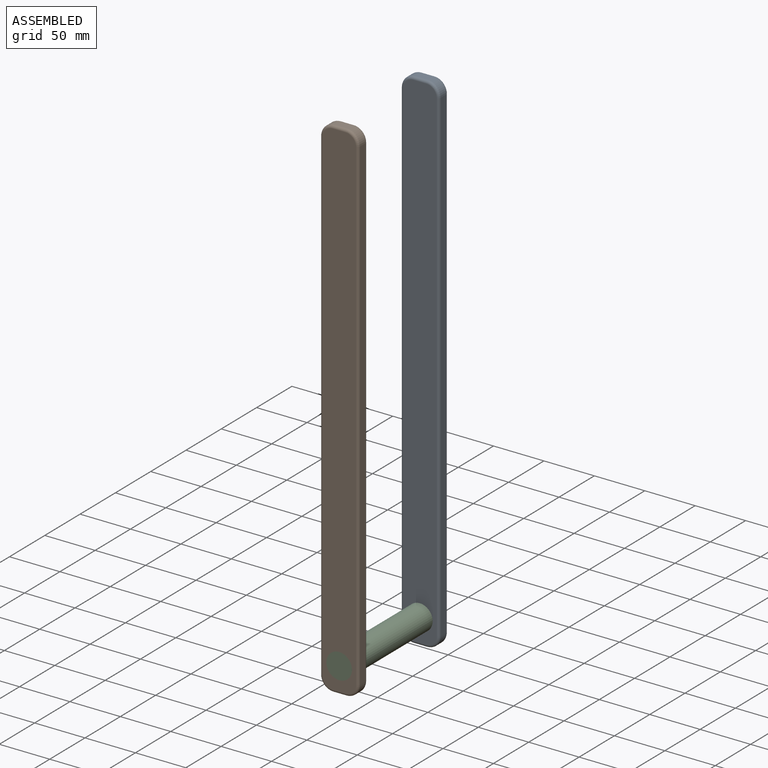
[diagram: assembled view]
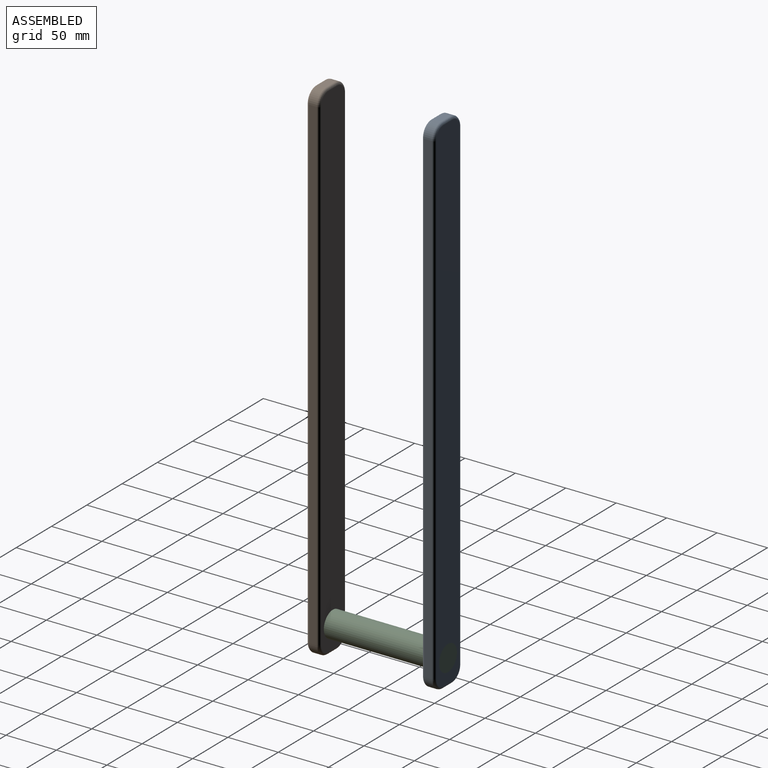
[diagram: assembled view, second angle]
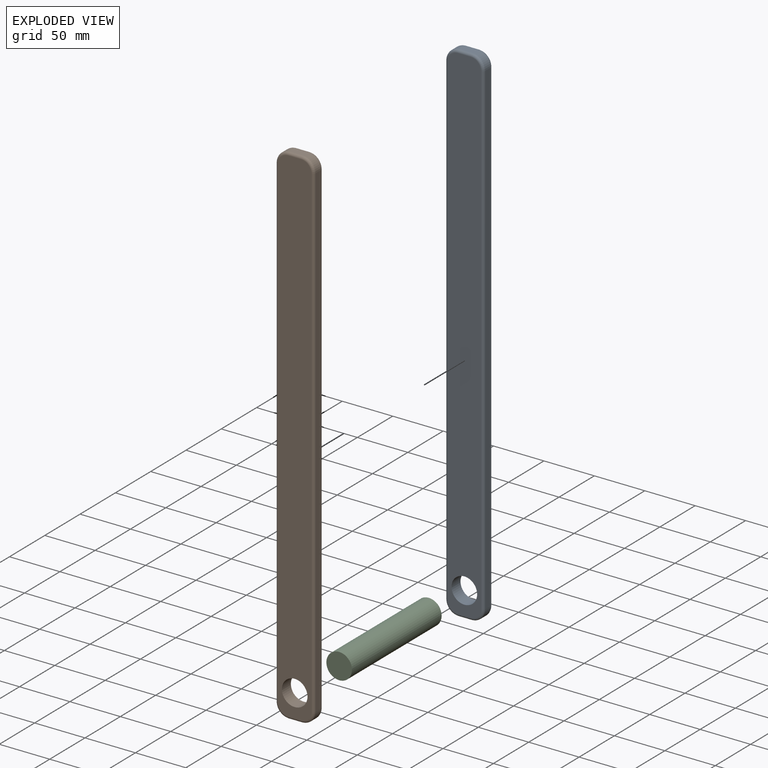
[diagram: exploded view]
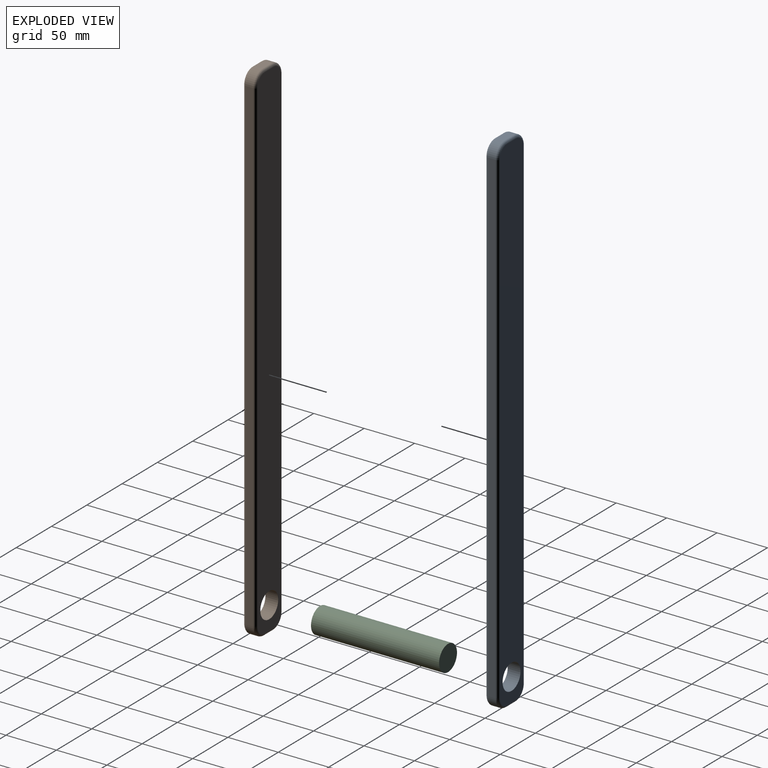
[diagram: exploded view, second angle]
ASSEMBLY  parts=3 mates=2
PART A: 27 faces, bbox 40.2x12.7x510.1 mm
  f0: plane 482.6x7.62mm, normal (-1,0,0), area 3677.4mm2, adj f1,f8,f14,f22
  f1: cylinder r=12.7mm len=12.7mm, axis (0,1,0), area 152mm2, adj f0,f2,f16,f24
  f2: plane 12.7x7.62mm, normal (0,0,-1), area 96.8mm2, adj f1,f3,f18,f26
  f3: cylinder r=12.7mm len=12.7mm, axis (0,1,0), area 152mm2, adj f2,f4,f17,f25
  f4: plane 482.6x7.62mm, normal (1,0,0), area 3677.4mm2, adj f3,f5,f15,f23
  f5: cylinder r=12.7mm len=12.7mm, axis (0,1,0), area 152mm2, adj f4,f6,f13,f21
  f6: plane 12.7x7.62mm, normal (0,0,1), area 96.8mm2, adj f5,f8,f11,f19
  f7: cylinder r=12.7mm len=25.4mm, axis (0,1,0), area 1013.4mm2, adj f9,f10
  f8: cylinder r=12.7mm len=12.7mm, axis (0,1,0), area 152mm2, adj f0,f6,f12,f20
  f9: plane 502.92x33.02mm, normal (0,-1,0), area 16011.1mm2, adj f7,f19,f20,f21,f22,f23,f24,f25
  f10: plane 502.92x33.02mm, normal (0,1,0), area 16011.1mm2, adj f7,f11,f12,f13,f14,f15,f16,f17
  f11: cylinder r=2.54mm len=12.7mm, axis (-1,0,0), area 50.7mm2, adj f6,f10,f12,f13
  f12: torus R=10.16mm, axis (0,-1,0), area 73.8mm2, adj f8,f10,f11,f14
  f13: torus R=10.16mm, axis (0,-1,0), area 73.8mm2, adj f5,f10,f11,f15
  f14: cylinder r=2.54mm len=482.6mm, axis (0,0,-1), area 1925.5mm2, adj f0,f10,f12,f16
  f15: cylinder r=2.54mm len=482.6mm, axis (0,0,1), area 1925.5mm2, adj f4,f10,f13,f17
  f16: torus R=10.16mm, axis (0,-1,0), area 73.8mm2, adj f1,f10,f14,f18
  f17: torus R=10.16mm, axis (0,-1,0), area 73.8mm2, adj f3,f10,f15,f18
  f18: cylinder r=2.54mm len=12.7mm, axis (1,0,0), area 50.7mm2, adj f2,f10,f16,f17
  f19: cylinder r=2.54mm len=12.7mm, axis (1,0,0), area 50.7mm2, adj f6,f9,f20,f21
  f20: torus R=10.16mm, axis (0,-1,0), area 73.8mm2, adj f8,f9,f19,f22
  f21: torus R=10.16mm, axis (0,-1,0), area 73.8mm2, adj f5,f9,f19,f23
  f22: cylinder r=2.54mm len=482.6mm, axis (0,0,1), area 1925.5mm2, adj f0,f9,f20,f24
  f23: cylinder r=2.54mm len=482.6mm, axis (0,0,-1), area 1925.5mm2, adj f4,f9,f21,f25
  f24: torus R=10.16mm, axis (0,-1,0), area 73.8mm2, adj f1,f9,f22,f26
  f25: torus R=10.16mm, axis (0,-1,0), area 73.8mm2, adj f3,f9,f23,f26
  f26: cylinder r=2.54mm len=12.7mm, axis (-1,0,0), area 50.7mm2, adj f2,f9,f24,f25
PART B: same geometry as A
PART C: 3 faces, bbox 25.4x127x25.4 mm
  f0: cylinder r=12.7mm len=127mm, axis (0,-1,0), area 10134.1mm2, adj f1,f2
  f1: plane 25.4x25.4mm, normal (0,1,0), area 506.7mm2, adj f0
  f2: plane 25.4x25.4mm, normal (0,-1,0), area 506.7mm2, adj f0
PLACE A t=(-38.1,0,-254)mm
PLACE B t=(-38.1,-114.3,-254)mm
PLACE C t=(-19.05,-63.5,-228.6)mm
MATE fastened C.f0 <-> A.f7  axis (0,1,0) through (-19.05,0,-228.6)mm
MATE fastened B.f7 <-> C.f0  axis (0,1,0) through (-19.05,-127,-228.6)mm
